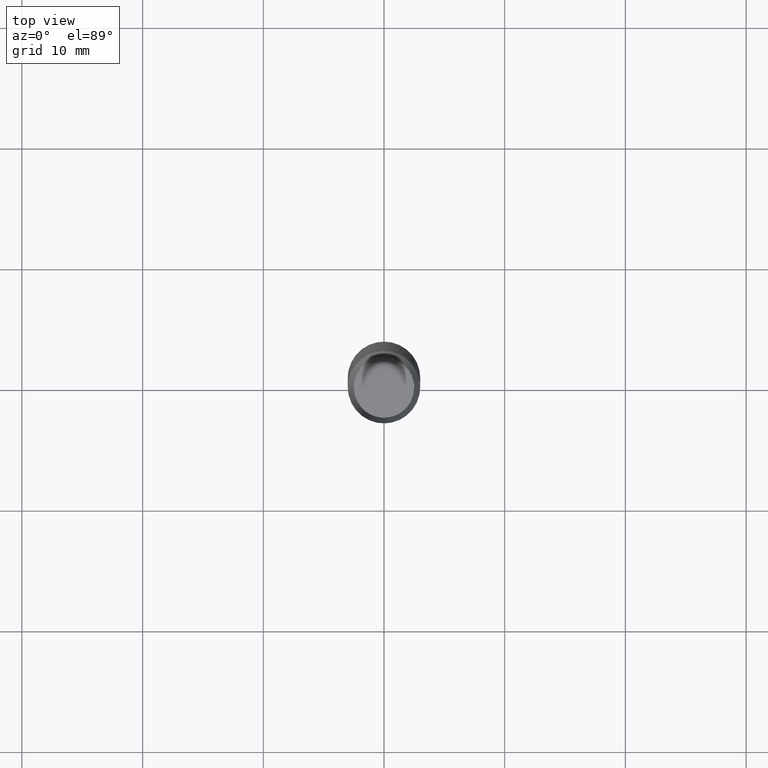
[diagram: clean part render]
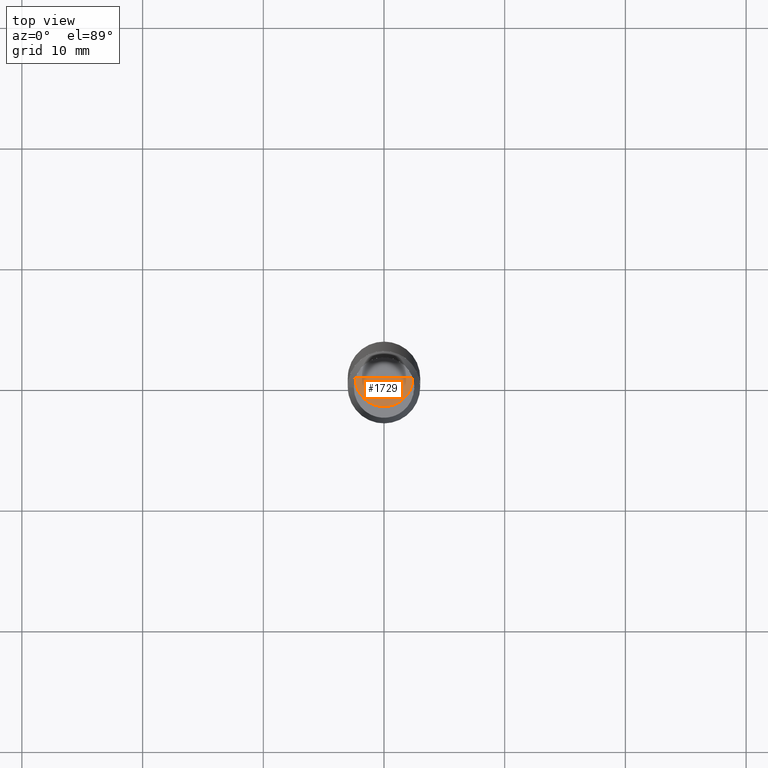
[diagram: same view with one face highlighted and labeled with its STEP entity id]
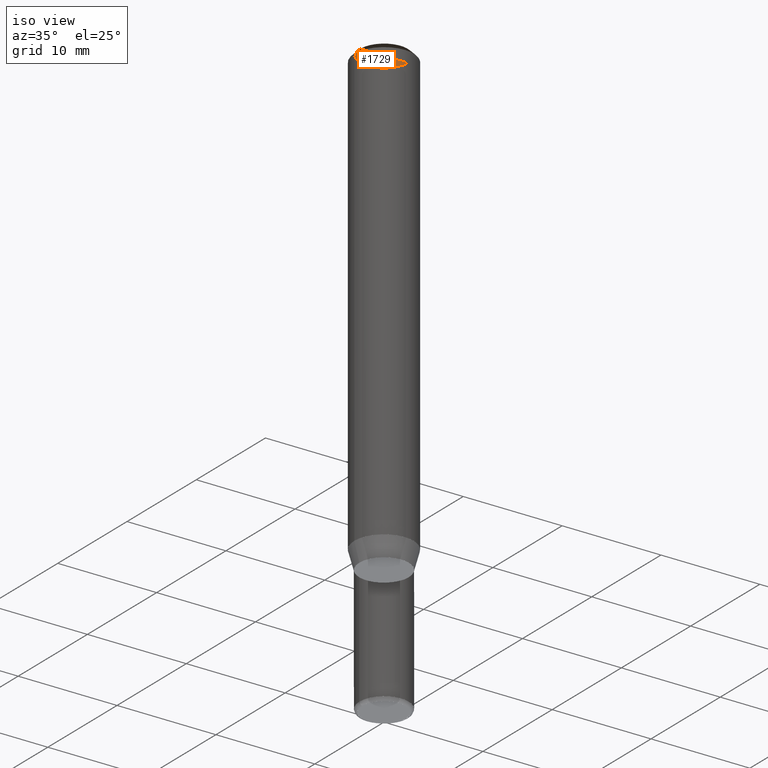
[diagram: same view with one face highlighted and labeled with its STEP entity id]
A machine part, top view. The second image highlights one B-rep face of the part: STEP entity #1729.
A second angle (iso view) of the same face is appended — the face is thin or edge-on in the first view.
In plain terms, the highlighted face is a freeform B-spline surface patch.
Its self-contained STEP definition (entity closure, byte-faithful):
#1374=CARTESIAN_POINT('',(2.4,0.0,45.133974596216));
#1378=CARTESIAN_POINT('',(-2.4,0.0,45.133974596216));
#1379=CARTESIAN_POINT('',(0.0,0.0,45.133974596216));
#1386=CARTESIAN_POINT('',(-2.4,-2.4,45.133974596216));
#1387=CARTESIAN_POINT('',(0.0,-2.4,45.133974596216));
#1388=CARTESIAN_POINT('',(2.4,-2.4,45.133974596216));
#1714=(
BOUNDED_SURFACE()
B_SPLINE_SURFACE(1,2,(
(#1378,#1386,#1387,#1388,#1374),
(#1379,#1379,#1379,#1379,#1379)
), .UNSPECIFIED.,.F.,.F.,.F.)
B_SPLINE_SURFACE_WITH_KNOTS((2,2),(3,2,3),(
0.0,1.0),(
0.0,0.5,1.0), .UNSPECIFIED.)
GEOMETRIC_REPRESENTATION_ITEM()
RATIONAL_B_SPLINE_SURFACE(((1.0,0.707106781187,1.0,0.707106781187,1.0),
(1.0,0.707106781187,1.0,0.707106781187,1.0)
))
REPRESENTATION_ITEM('')
SURFACE()
);
#1715=(
BOUNDED_CURVE()
B_SPLINE_CURVE(1,(#1379,#1374),.UNSPECIFIED.,.F.,.F.)
B_SPLINE_CURVE_WITH_KNOTS((2,2),
(0.0,1.0),.UNSPECIFIED.)
CURVE()
GEOMETRIC_REPRESENTATION_ITEM()
RATIONAL_B_SPLINE_CURVE((1.0,1.0))
REPRESENTATION_ITEM('')
);
#1716=(
BOUNDED_CURVE()
B_SPLINE_CURVE(2,(#1374,#1388,#1387,#1386,#1378),.UNSPECIFIED.,.F.,.F.)
B_SPLINE_CURVE_WITH_KNOTS((3,2,3),
(0.0,0.5,1.0),.UNSPECIFIED.)
CURVE()
GEOMETRIC_REPRESENTATION_ITEM()
RATIONAL_B_SPLINE_CURVE((1.0,0.707106781187,1.0,0.707106781187,1.0))
REPRESENTATION_ITEM('')
);
#1717=(
BOUNDED_CURVE()
B_SPLINE_CURVE(1,(#1378,#1379),.UNSPECIFIED.,.F.,.F.)
B_SPLINE_CURVE_WITH_KNOTS((2,2),
(0.0,1.0),.UNSPECIFIED.)
CURVE()
GEOMETRIC_REPRESENTATION_ITEM()
RATIONAL_B_SPLINE_CURVE((1.0,1.0))
REPRESENTATION_ITEM('')
);
#1718=VERTEX_POINT('',#1374);
#1719=VERTEX_POINT('',#1378);
#1720=VERTEX_POINT('',#1379);
#1721=EDGE_CURVE('',#1720,#1718,#1715,.T.);
#1722=EDGE_CURVE('',#1718,#1719,#1716,.T.);
#1723=EDGE_CURVE('',#1719,#1720,#1717,.T.);
#1724=ORIENTED_EDGE('',*,*,#1721,.T.);
#1725=ORIENTED_EDGE('',*,*,#1722,.T.);
#1726=ORIENTED_EDGE('',*,*,#1723,.T.);
#1727=EDGE_LOOP('',(#1724,#1725,#1726));
#1728=FACE_OUTER_BOUND('',#1727,.T.);
#1729=ADVANCED_FACE('',(#1728),#1714,.T.);